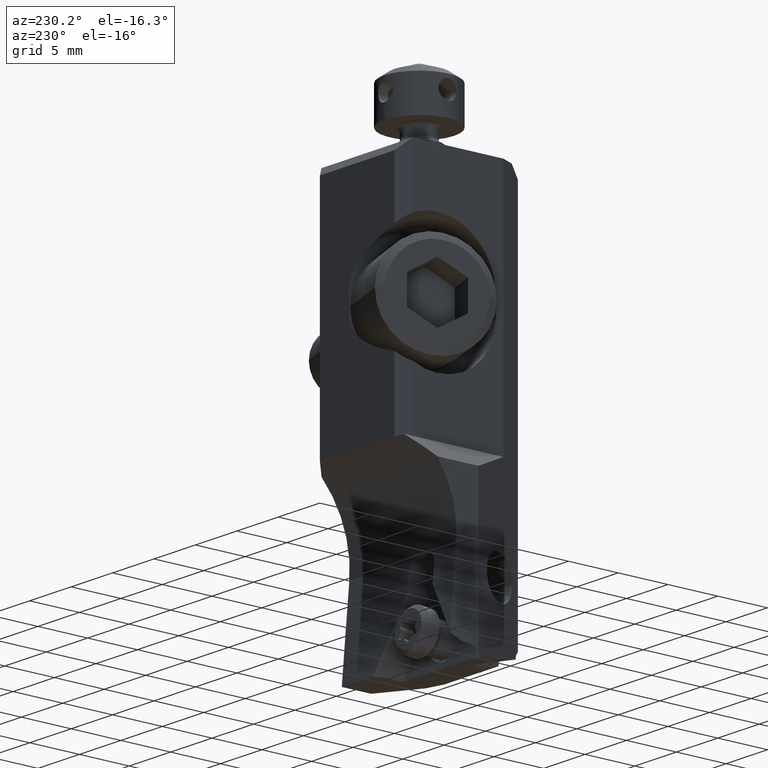
[diagram: clean part render]
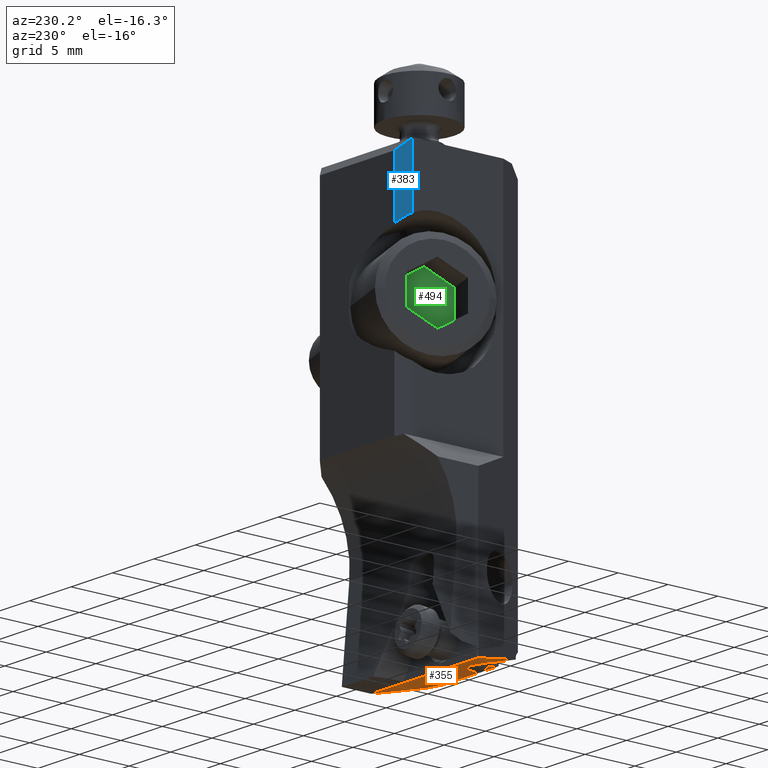
[diagram: same view with three faces highlighted in distinct colors, each labeled with its STEP entity id]
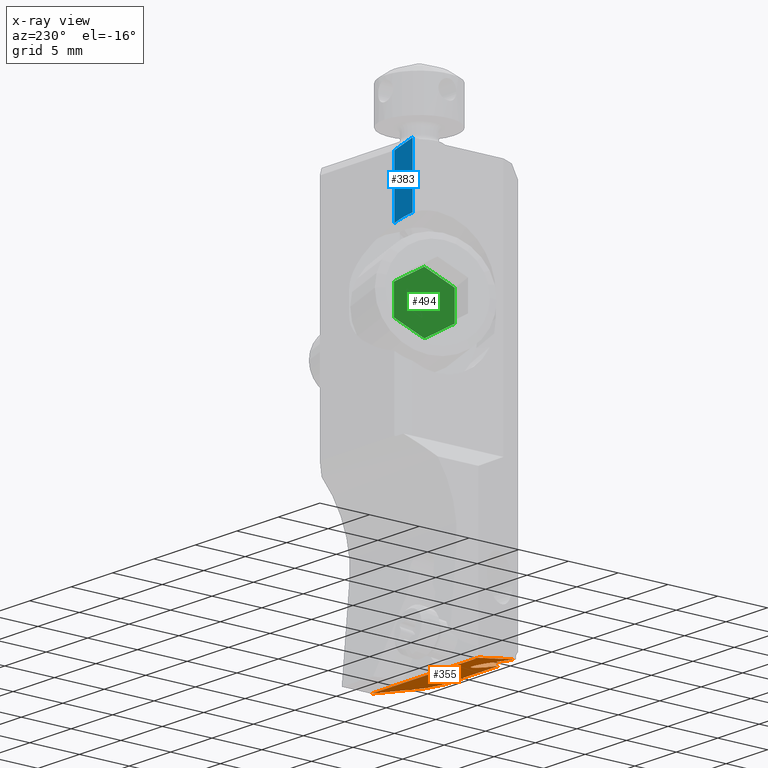
[diagram: x-ray of the same camera — body ghosted, the three highlighted faces saturated]
A machine part, auxiliary view with three faces highlighted in distinct colors.
The next image is the same camera in x-ray (body ghosted, the three faces saturated) — at least one of them is partly hidden behind the body in this view.
Their STEP definitions:

[orange] entity #355 — the highlighted planar face has unit normal (0, 0.2588, 0.9659).
#355=ADVANCED_FACE('',(#547),#496,.F.);
#496=PLANE('',#2708);
#547=FACE_OUTER_BOUND('',#678,.T.);
#678=EDGE_LOOP('',(#861,#862,#863,#864,#865,#866,#867));
#831=ELLIPSE('',#2705,3.65475550010155,1.249999999976);
#832=ELLIPSE('',#2707,3.65475550010155,1.249999999976);
#861=ORIENTED_EDGE('',*,*,#1862,.T.);
#862=ORIENTED_EDGE('',*,*,#1863,.T.);
#863=ORIENTED_EDGE('',*,*,#1864,.T.);
#864=ORIENTED_EDGE('',*,*,#1865,.T.);
#865=ORIENTED_EDGE('',*,*,#1866,.T.);
#866=ORIENTED_EDGE('',*,*,#1852,.F.);
#867=ORIENTED_EDGE('',*,*,#1861,.F.);
#1608=VERTEX_POINT('',#3835);
#1609=VERTEX_POINT('',#3836);
#1616=VERTEX_POINT('',#3852);
#1617=VERTEX_POINT('',#3856);
#1618=VERTEX_POINT('',#3858);
#1619=VERTEX_POINT('',#3860);
#1620=VERTEX_POINT('',#3862);
#1852=EDGE_CURVE('',#1608,#1609,#2231,.T.);
#1861=EDGE_CURVE('',#1616,#1608,#831,.T.);
#1862=EDGE_CURVE('',#1616,#1617,#832,.T.);
#1863=EDGE_CURVE('',#1617,#1618,#2237,.T.);
#1864=EDGE_CURVE('',#1618,#1619,#2238,.T.);
#1865=EDGE_CURVE('',#1619,#1620,#2239,.T.);
#1866=EDGE_CURVE('',#1620,#1609,#2240,.T.);
#2231=LINE('',#3834,#2410);
#2237=LINE('',#3857,#2416);
#2238=LINE('',#3859,#2417);
#2239=LINE('',#3861,#2418);
#2240=LINE('',#3863,#2419);
#2410=VECTOR('',#3039,1.);
#2416=VECTOR('',#3059,1.);
#2417=VECTOR('',#3060,1.);
#2418=VECTOR('',#3061,1.);
#2419=VECTOR('',#3062,1.);
#2705=AXIS2_PLACEMENT_3D('',#3853,#3053,#3054);
#2707=AXIS2_PLACEMENT_3D('',#3855,#3057,#3058);
#2708=AXIS2_PLACEMENT_3D('',#3864,#3063,#3064);
#3039=DIRECTION('',(1.,0.,-1.47380858833E-13));
#3053=DIRECTION('',(0.,-0.25881904510329,-0.965925826288862));
#3054=DIRECTION('',(0.,0.965925826288862,-0.25881904510329));
#3057=DIRECTION('',(0.,0.25881904510329,0.965925826288862));
#3058=DIRECTION('',(0.,0.965925826288862,-0.25881904510329));
#3059=DIRECTION('',(-0.410682057590796,0.880710514629992,-0.235985671160698));
#3060=DIRECTION('',(1.,0.,-2.309813846898E-14));
#3061=DIRECTION('',(0.,-0.965925826289044,0.258819045102612));
#3062=DIRECTION('',(-0.694746590606969,-0.694746590606869,0.186156787896992));
#3063=DIRECTION('',(0.,0.25881904510329,0.965925826288862));
#3064=DIRECTION('',(0.,-0.965925826288862,0.25881904510329));
#3834=CARTESIAN_POINT('',(-7.556741006163,3.076751816285E-13,-39.6169390899));
#3835=CARTESIAN_POINT('',(-7.55674100617858,1.5383759081425E-13,-39.616939089898));
#3836=CARTESIAN_POINT('',(-1.,3.210024838533E-13,-39.6169390899));
#3852=CARTESIAN_POINT('',(-8.80575954673,3.67008900094915,-40.6003364738553));
#3853=CARTESIAN_POINT('',(-8.80575954673,0.139866274613145,-39.6544161452271));
#3855=CARTESIAN_POINT('',(-8.80575954673,0.139866274616497,-39.654416145228));
#3856=CARTESIAN_POINT('',(-10.0534849235439,0.352738580799801,-39.7114551077642));
#3857=CARTESIAN_POINT('',(-10.05348492356,0.3527385808469,-39.71145510778));
#3858=CARTESIAN_POINT('',(-12.92,6.5,-41.3586088407));
#3859=CARTESIAN_POINT('',(-12.92,6.5,-41.3586088407));
#3860=CARTESIAN_POINT('',(0.,6.5,-41.3586088407));
#3861=CARTESIAN_POINT('',(0.,6.5,-41.3586088407));
#3862=CARTESIAN_POINT('',(0.,1.,-39.88488828233));
#3863=CARTESIAN_POINT('',(0.,1.,-39.88488828233));
#3864=CARTESIAN_POINT('',(-6.46,3.25,-40.4877739653));

[blue] entity #383 — the highlighted planar face has unit normal (0.7071, -0.7071, 0).
#383=ADVANCED_FACE('',(#571),#518,.F.);
#518=PLANE('',#2768);
#571=FACE_OUTER_BOUND('',#710,.T.);
#710=EDGE_LOOP('',(#1037,#1038,#1039,#1040));
#848=ELLIPSE('',#2767,6.06857855429182,5.5);
#1037=ORIENTED_EDGE('',*,*,#1896,.F.);
#1038=ORIENTED_EDGE('',*,*,#1963,.T.);
#1039=ORIENTED_EDGE('',*,*,#1964,.T.);
#1040=ORIENTED_EDGE('',*,*,#1965,.T.);
#1639=VERTEX_POINT('',#3909);
#1645=VERTEX_POINT('',#3923);
#1684=VERTEX_POINT('',#4053);
#1685=VERTEX_POINT('',#4057);
#1896=EDGE_CURVE('',#1639,#1645,#2259,.T.);
#1963=EDGE_CURVE('',#1639,#1684,#2305,.T.);
#1964=EDGE_CURVE('',#1684,#1685,#2306,.T.);
#1965=EDGE_CURVE('',#1685,#1645,#848,.T.);
#2259=LINE('',#3922,#2438);
#2305=LINE('',#4054,#2484);
#2306=LINE('',#4056,#2485);
#2438=VECTOR('',#3113,1.);
#2484=VECTOR('',#3243,1.);
#2485=VECTOR('',#3246,1.);
#2767=AXIS2_PLACEMENT_3D('',#4058,#3247,#3248);
#2768=AXIS2_PLACEMENT_3D('',#4059,#3249,#3250);
#3113=DIRECTION('',(-3.363836041635E-13,-9.434071282412E-14,-1.));
#3243=DIRECTION('',(0.577350269189626,0.577350269189626,-0.577350269189626));
#3246=DIRECTION('',(-1.005398444362E-13,-4.451613594012E-14,-1.));
#3247=DIRECTION('',(0.707106781186548,-0.707106781186548,0.));
#3248=DIRECTION('',(-0.707106781186548,-0.707106781186548,0.));
#3249=DIRECTION('',(0.707106781186547,-0.707106781186547,0.));
#3250=DIRECTION('',(-0.707106781186547,-0.707106781186547,0.));
#3909=CARTESIAN_POINT('',(-11.,11.5,0.));
#3922=CARTESIAN_POINT('',(-11.,11.5,0.));
#3923=CARTESIAN_POINT('',(-11.000000000001,11.4999999999997,-6.02533277088581));
#4053=CARTESIAN_POINT('',(-10.,12.5,-1.));
#4054=CARTESIAN_POINT('',(-11.,11.5,0.));
#4056=CARTESIAN_POINT('',(-10.,12.5,-1.));
#4057=CARTESIAN_POINT('',(-10.0000000000003,12.4999999999999,-6.86583830507921));
#4058=CARTESIAN_POINT('',(-12.8301920088521,9.66980799114789,-11.));
#4059=CARTESIAN_POINT('',(-10.5,12.,-3.432919152541));

[green] entity #494 — the highlighted planar face has unit normal (0.9397, -0.342, 0).
#494=ADVANCED_FACE('',(#675),#544,.F.);
#544=PLANE('',#2998);
#675=FACE_OUTER_BOUND('',#828,.T.);
#828=EDGE_LOOP('',(#1602,#1603,#1604,#1605,#1606,#1607));
#1602=ORIENTED_EDGE('',*,*,#2230,.F.);
#1603=ORIENTED_EDGE('',*,*,#2228,.F.);
#1604=ORIENTED_EDGE('',*,*,#2226,.F.);
#1605=ORIENTED_EDGE('',*,*,#2224,.F.);
#1606=ORIENTED_EDGE('',*,*,#2222,.F.);
#1607=ORIENTED_EDGE('',*,*,#2220,.F.);
#1846=VERTEX_POINT('',#5376);
#1847=VERTEX_POINT('',#5378);
#1848=VERTEX_POINT('',#5382);
#1849=VERTEX_POINT('',#5386);
#1850=VERTEX_POINT('',#5390);
#1851=VERTEX_POINT('',#5394);
#2220=EDGE_CURVE('',#1846,#1847,#2399,.T.);
#2222=EDGE_CURVE('',#1847,#1848,#2401,.T.);
#2224=EDGE_CURVE('',#1848,#1849,#2403,.T.);
#2226=EDGE_CURVE('',#1849,#1850,#2405,.T.);
#2228=EDGE_CURVE('',#1850,#1851,#2407,.T.);
#2230=EDGE_CURVE('',#1851,#1846,#2409,.T.);
#2399=LINE('',#5377,#2578);
#2401=LINE('',#5381,#2580);
#2403=LINE('',#5385,#2582);
#2405=LINE('',#5389,#2584);
#2407=LINE('',#5393,#2586);
#2409=LINE('',#5397,#2588);
#2578=VECTOR('',#3789,1.);
#2580=VECTOR('',#3793,1.);
#2582=VECTOR('',#3797,1.);
#2584=VECTOR('',#3801,1.);
#2586=VECTOR('',#3805,1.);
#2588=VECTOR('',#3809,1.);
#2998=AXIS2_PLACEMENT_3D('',#5399,#3812,#3813);
#3789=DIRECTION('',(0.296198132725803,0.813797681348407,-0.500000000001704));
#3793=DIRECTION('',(0.296198132725506,0.813797681348818,0.500000000001211));
#3797=DIRECTION('',(-1.10762650736E-14,7.99952477538E-14,1.));
#3801=DIRECTION('',(-0.296198132725508,-0.813797681349123,0.500000000000714));
#3805=DIRECTION('',(-0.296198132725804,-0.813797681348712,-0.500000000001207));
#3809=DIRECTION('',(-6.584224238196E-14,-6.922665671001E-14,-1.));
#3812=DIRECTION('',(0.939692620785821,-0.342020143325908,0.));
#3813=DIRECTION('',(-0.342020143325908,-0.939692620785821,0.));
#5376=CARTESIAN_POINT('',(-9.035972495956,5.628380594986,-13.44337567297));
#5377=CARTESIAN_POINT('',(-9.035972495956,5.628380594986,-13.44337567297));
#5378=CARTESIAN_POINT('',(-8.180922137642,7.977612146951,-14.88675134595));
#5381=CARTESIAN_POINT('',(-8.180922137642,7.977612146951,-14.88675134595));
#5382=CARTESIAN_POINT('',(-7.325871779327,10.32684369892,-13.44337567297));
#5385=CARTESIAN_POINT('',(-7.325871779327,10.32684369892,-13.44337567297));
#5386=CARTESIAN_POINT('',(-7.325871779327,10.32684369892,-10.55662432703));
#5389=CARTESIAN_POINT('',(-7.325871779327,10.32684369892,-10.55662432703));
#5390=CARTESIAN_POINT('',(-8.180922137642,7.977612146951,-9.113248654052));
#5393=CARTESIAN_POINT('',(-8.180922137642,7.977612146951,-9.113248654052));
#5394=CARTESIAN_POINT('',(-9.035972495956,5.628380594987,-10.55662432703));
#5397=CARTESIAN_POINT('',(-9.035972495956,5.628380594987,-10.55662432703));
#5399=CARTESIAN_POINT('',(-8.180922137641,7.977612146953,-12.));